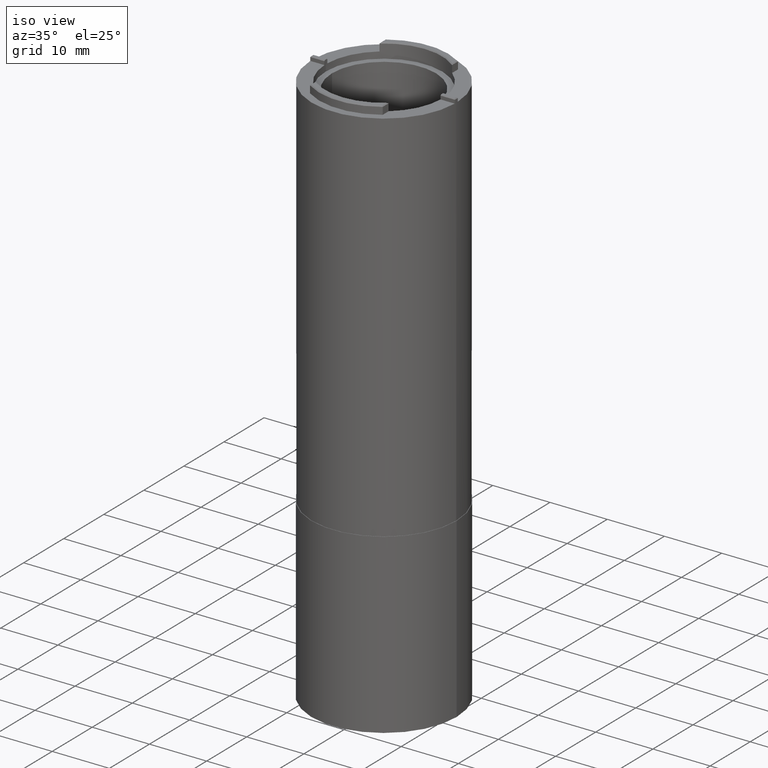
[diagram: clean part render]
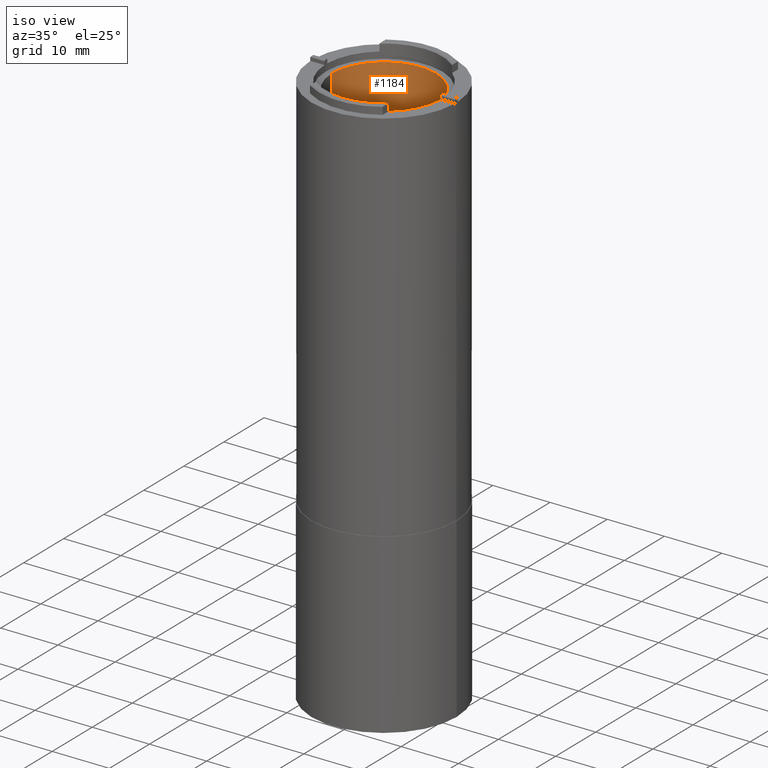
[diagram: same view with one face highlighted and labeled with its STEP entity id]
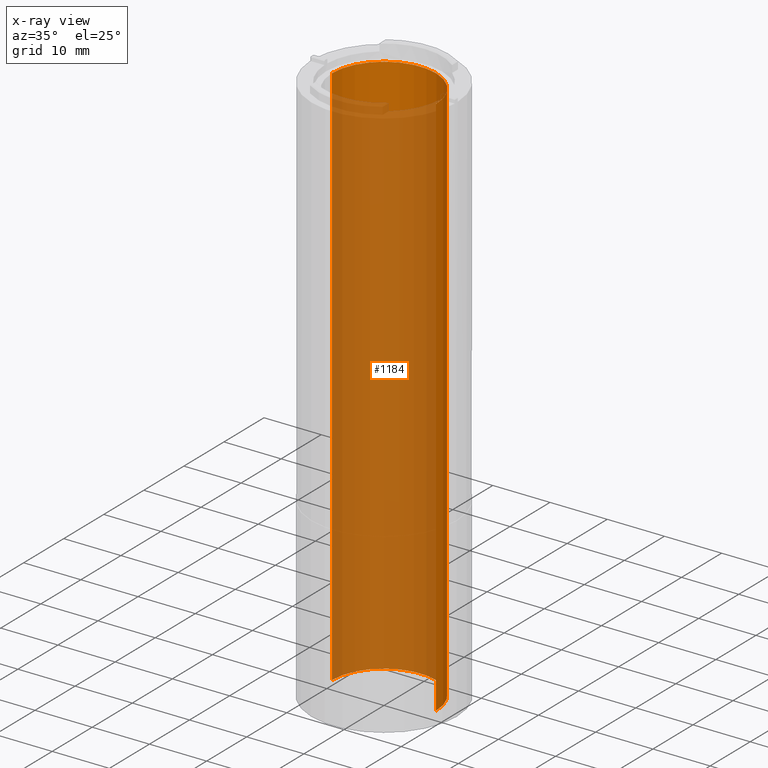
[diagram: x-ray of the same camera — body ghosted, the highlighted face saturated]
A machine part, iso view. The second image highlights one B-rep face of the part: STEP entity #1184.
The next image is the same camera in x-ray: the body ghosted, the highlighted face saturated — about 84% of this face is hidden behind the body in this view.
In plain terms, the highlighted cylindrical surface (partial cylindrical patch) has radius 9.0805 mm, axis along (-0, -0, -1).
Its self-contained STEP definition (entity closure, byte-faithful):
#45 = DIRECTION ( 'NONE',  ( 1.000000000000000000, 0.000000000000000000, 0.000000000000000000 ) ) ;
#125 = VECTOR ( 'NONE', #1806, 1000.000000000000000 ) ;
#155 = VERTEX_POINT ( 'NONE', #581 ) ;
#184 = CARTESIAN_POINT ( 'NONE',  ( -9.080499999999998906, 0.000000000000000000, 97.03000000000000114 ) ) ;
#346 = EDGE_CURVE ( 'NONE', #725, #1331, #982, .T. ) ;
#348 = DIRECTION ( 'NONE',  ( -0.000000000000000000, -0.000000000000000000, -1.000000000000000000 ) ) ;
#403 = EDGE_CURVE ( 'NONE', #155, #1331, #656, .T. ) ;
#427 = ORIENTED_EDGE ( 'NONE', *, *, #403, .T. ) ;
#435 = AXIS2_PLACEMENT_3D ( 'NONE', #720, #1741, #1458 ) ;
#484 = VERTEX_POINT ( 'NONE', #525 ) ;
#514 = AXIS2_PLACEMENT_3D ( 'NONE', #947, #1371, #45 ) ;
#523 = EDGE_LOOP ( 'NONE', ( #1749, #1434, #427, #917 ) ) ;
#525 = CARTESIAN_POINT ( 'NONE',  ( 9.080499999999998906, 1.112040525965753818E-15, 95.89000000000000057 ) ) ;
#581 = CARTESIAN_POINT ( 'NONE',  ( -9.080499999999998906, 0.000000000000000000, 95.89000000000000057 ) ) ;
#656 = LINE ( 'NONE', #184, #125 ) ;
#716 = CARTESIAN_POINT ( 'NONE',  ( 9.080499999999998906, 1.112040525965753818E-15, 0.000000000000000000 ) ) ;
#720 = CARTESIAN_POINT ( 'NONE',  ( 0.000000000000000000, 0.000000000000000000, 97.03000000000000114 ) ) ;
#725 = VERTEX_POINT ( 'NONE', #716 ) ;
#734 = DIRECTION ( 'NONE',  ( 1.000000000000000000, 0.000000000000000000, 0.000000000000000000 ) ) ;
#795 = CARTESIAN_POINT ( 'NONE',  ( 9.080499999999998906, 1.112040525965753818E-15, 97.03000000000000114 ) ) ;
#823 = EDGE_CURVE ( 'NONE', #484, #155, #883, .T. ) ;
#883 = CIRCLE ( 'NONE', #942, 9.080499999999998906 ) ;
#902 = CARTESIAN_POINT ( 'NONE',  ( -9.080499999999998906, 0.000000000000000000, 0.000000000000000000 ) ) ;
#917 = ORIENTED_EDGE ( 'NONE', *, *, #346, .F. ) ;
#942 = AXIS2_PLACEMENT_3D ( 'NONE', #1613, #1772, #734 ) ;
#947 = CARTESIAN_POINT ( 'NONE',  ( 0.000000000000000000, 0.000000000000000000, 0.000000000000000000 ) ) ;
#982 = CIRCLE ( 'NONE', #514, 9.080499999999998906 ) ;
#1023 = EDGE_CURVE ( 'NONE', #484, #725, #1666, .T. ) ;
#1167 = FACE_OUTER_BOUND ( 'NONE', #523, .T. ) ;
#1184 = ADVANCED_FACE ( 'NONE', ( #1167 ), #1637, .F. ) ;
#1331 = VERTEX_POINT ( 'NONE', #902 ) ;
#1371 = DIRECTION ( 'NONE',  ( 0.000000000000000000, 0.000000000000000000, 1.000000000000000000 ) ) ;
#1434 = ORIENTED_EDGE ( 'NONE', *, *, #823, .T. ) ;
#1458 = DIRECTION ( 'NONE',  ( -1.000000000000000000, 0.000000000000000000, 0.000000000000000000 ) ) ;
#1613 = CARTESIAN_POINT ( 'NONE',  ( 0.000000000000000000, 0.000000000000000000, 95.89000000000000057 ) ) ;
#1637 = CYLINDRICAL_SURFACE ( 'NONE', #435, 9.080499999999998906 ) ;
#1666 = LINE ( 'NONE', #795, #1686 ) ;
#1686 = VECTOR ( 'NONE', #348, 1000.000000000000000 ) ;
#1741 = DIRECTION ( 'NONE',  ( -0.000000000000000000, -0.000000000000000000, -1.000000000000000000 ) ) ;
#1749 = ORIENTED_EDGE ( 'NONE', *, *, #1023, .F. ) ;
#1772 = DIRECTION ( 'NONE',  ( 0.000000000000000000, 0.000000000000000000, 1.000000000000000000 ) ) ;
#1806 = DIRECTION ( 'NONE',  ( -0.000000000000000000, -0.000000000000000000, -1.000000000000000000 ) ) ;